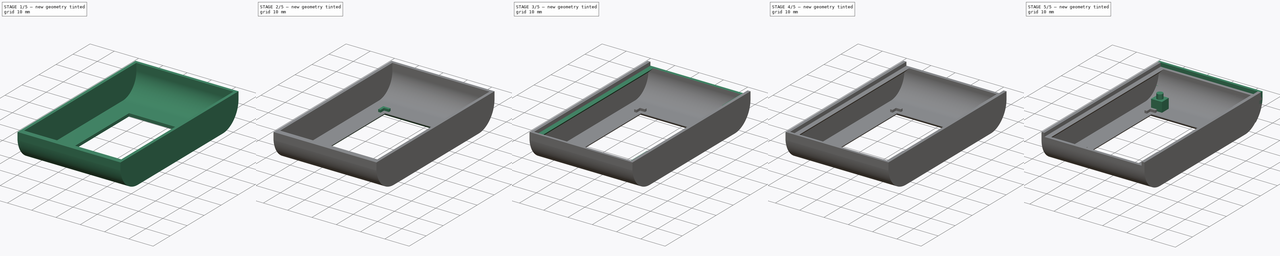
[diagram: build sequence overview — one tinted view per stage of 5, left to right]
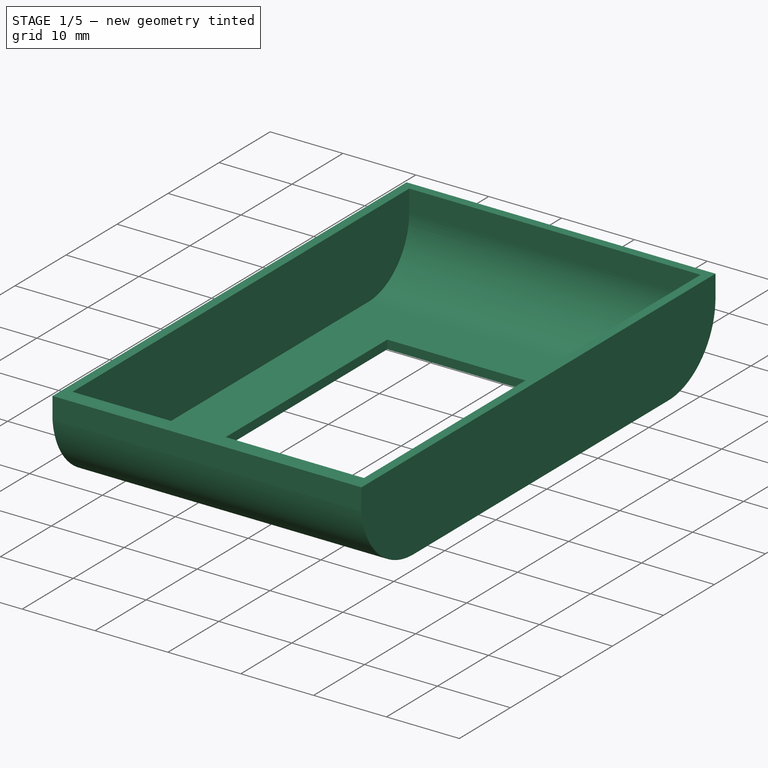
[diagram: stage 1 of 5 — iso view after this stage's code; geometry added in this stage tinted green]
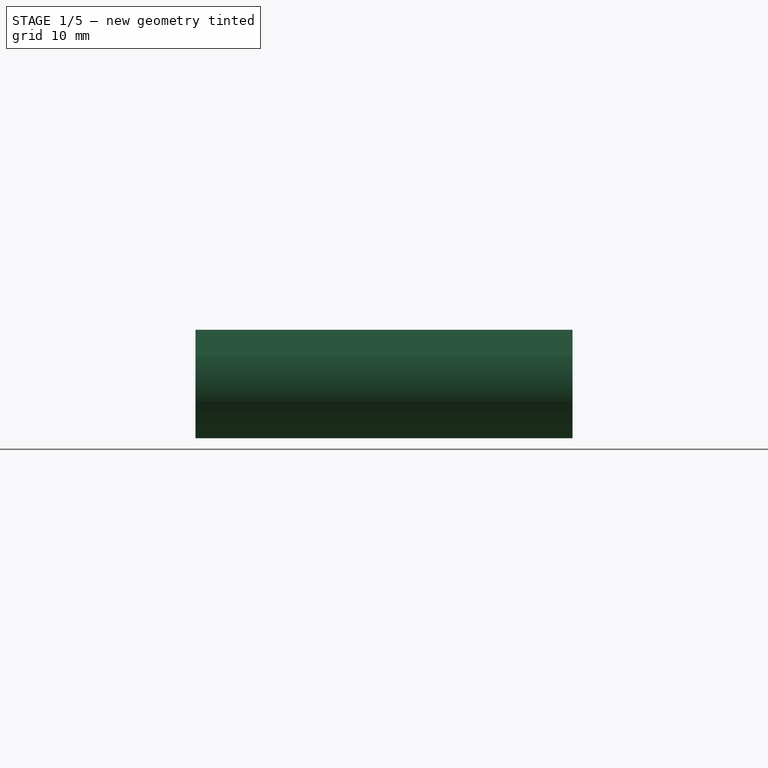
[diagram: stage 1 of 5 — front view after this stage's code; geometry added in this stage tinted green]
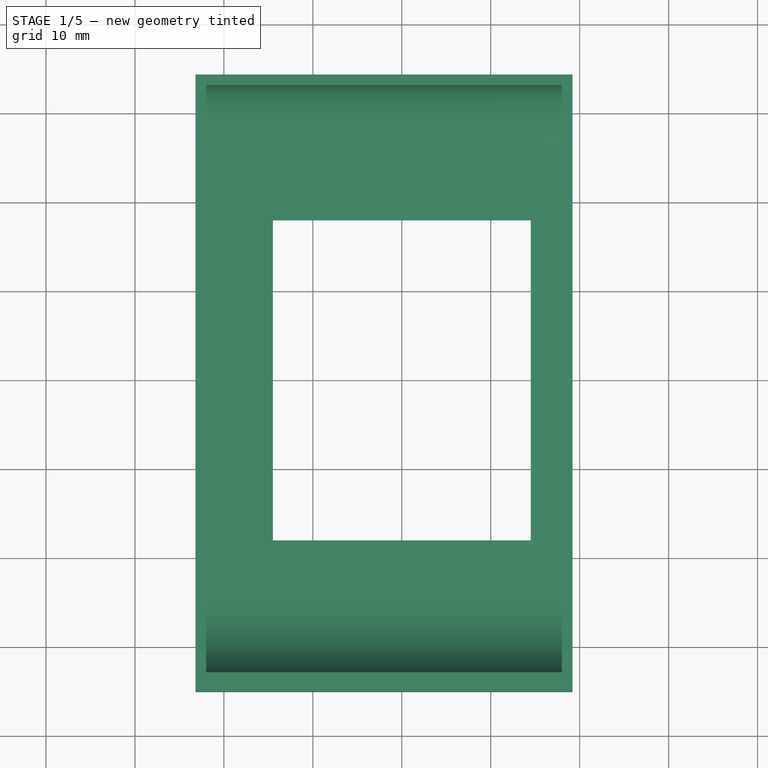
[diagram: stage 1 of 5 — top view after this stage's code; geometry added in this stage tinted green]
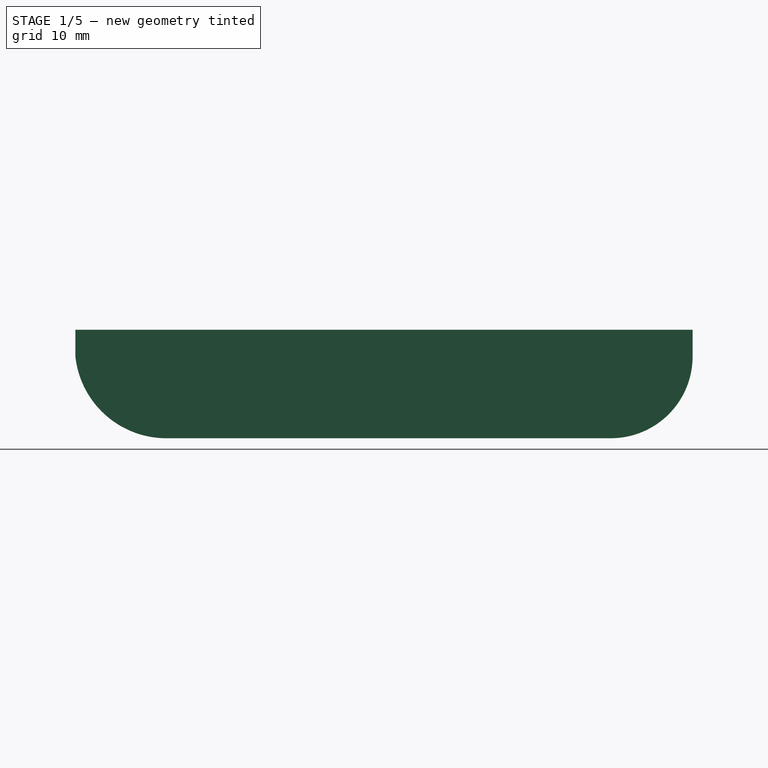
[diagram: stage 1 of 5 — right view after this stage's code; geometry added in this stage tinted green]
FCSTD DOCUMENT  (FreeCAD 0.18.3R)
Label: CajaSimple
License: All rights reserved
LicenseURL: http://en.wikipedia.org/wiki/All_rights_reserved
objects: Sketcher::SketchObject×13, PartDesign::Pad×9, PartDesign::Pocket×4, PartDesign::Body×4, App::MeasureDistance×4, Part::Mirroring×3, PartDesign::Mirrored×2, PartDesign::Thickness×1, PartDesign::Chamfer×1, PartDesign::PolarPattern×1, Part::Sphere×1, Part::Cut×1, App::Part×1
note: 53 computed .brp shape members not serialized (recipe doc carries the construction recipe); baked Part::Feature solids carry a one-line shape summary decoded from their .brp

FEATURE [Sketcher::SketchObject] Sketch
  MapMode = 5
  Placement = pos=(0,0,0) rot=(0.57735,0.57735,0.57735;2.0944rad)
  Support = -> [YZ_Plane001]
  expr: Constraints[5] = Constraints.RadioMenor
  sketch-geometry (7):
    g0: LineSegment StartX=-25 StartY=0 StartZ=0 EndX=25 EndY=0 EndZ=0
    g1: LineSegment StartX=-33 StartY=11 StartZ=0 EndX=-33 EndY=8 EndZ=0
    g2: ArcOfCircle CenterX=-25 CenterY=8 CenterZ=0 NormalX=0 NormalY=0 NormalZ=1 AngleXU=0 Radius=8 StartAngle=3.14159 EndAngle=4.71239
    g3: LineSegment StartX=-33 StartY=11 StartZ=0 EndX=33 EndY=11 EndZ=0
    g4: LineSegment StartX=33 StartY=11 StartZ=0 EndX=33 EndY=8 EndZ=0
    g5: ArcOfCircle CenterX=25 CenterY=8 CenterZ=0 NormalX=0 NormalY=0 NormalZ=1 AngleXU=0 Radius=8 StartAngle=4.71239 EndAngle=6.28319
    g6: LineSegment [constr] StartX=-30 StartY=4 StartZ=0 EndX=30 EndY=4 EndZ=0
  constraints (18):
    c: PointOnObject(g0,g-1)
    c: Parallel(g1,g-2)
    c: Tangent(g2,g1) = -1.5708
    c: Tangent(g2,g0) = -1.5708
    c: DistanceX(g0,g0) = 50  'Ancho'
    c: Radius(g2) = 8
    c: Coincident(g3,g1)
    c: Perpendicular(g-2,g3)
    c: Tangent(g5,g4) = 1.5708
    c: Radius(g5) = 8  'RadioMenor'
    c: Coincident(g3,g4)
    c: Tangent(g5,g0) = -1.5708
    c: Parallel(g4,g-2)
    c: Symmetric(g0,g0,g-2)
    c: DistanceY(g0,g1) = 11  'Capacidad'
    c: Symmetric(g6,g6,g-2)
    c: DistanceX(g6,g6) = 60
    c: DistanceY(g0,g6) = 4
FEATURE [PartDesign::Pad] Pad
  Length = 18
  Length2 = 22
  Placement = pos=(0,0,0) rot=(0.57735,0.57735,0.57735;2.0944rad)
  Profile = -> Sketch
  Type = 4
FEATURE [PartDesign::Thickness] Thickness  label="Cascaron"
  Base = -> Pad [Face6]
  BaseFeature = -> Pad
  Join = 1
  Mode = 0
  Value = 1.2
FEATURE [Sketcher::SketchObject] Sketch001
  MapMode = 5
  Placement = pos=(0,0,0) rot=(0.57735,0.57735,0.57735;2.0944rad)
  Support = -> [YZ_Plane002]
  expr: Constraints[21] = Cascaron.Value
  expr: Constraints[8] = Sketch.Constraints.Capacidad
  expr: Constraints.Ancho = Sketch.Constraints[4]
  expr: Constraints[7] = Cascaron.Value + 1mm
  sketch-geometry (8):
    g0: LineSegment [constr] StartX=-25 StartY=0 StartZ=0 EndX=25 EndY=0 EndZ=0
    g1: LineSegment [constr] StartX=-33 StartY=11 StartZ=0 EndX=-33 EndY=8 EndZ=0
    g2: ArcOfCircle CenterX=-25 CenterY=8 CenterZ=0 NormalX=0 NormalY=0 NormalZ=1 AngleXU=0 Radius=8 StartAngle=3.14159 EndAngle=4.71239
    g3: LineSegment StartX=-33 StartY=11 StartZ=0 EndX=-33 EndY=8 EndZ=0
    g4: LineSegment StartX=-35.2 StartY=8 StartZ=0 EndX=-35.2 EndY=11 EndZ=0
    g5: LineSegment StartX=-35.2 StartY=11 StartZ=0 EndX=-33 EndY=11 EndZ=0
    g6: ArcOfCircle CenterX=-24.9679 CenterY=9.08995 CenterZ=0 NormalX=0 NormalY=0 NormalZ=1 AngleXU=0 Radius=10.29 StartAngle=3.24771 EndAngle=4.70927
    g7: LineSegment StartX=-25 StartY=0 StartZ=0 EndX=-25 EndY=-1.2 EndZ=0
  constraints (22):
    c: PointOnObject(g0,g-1)
    c: Parallel(g1,g-2)
    c: Tangent(g2,g1) = -1.5708
    c: DistanceX(g0,g0) = 50  'Ancho'
    c: Radius(g2) = 8  'RadioMenor'
    c: Symmetric(g0,g0,g-2)
    c: Coincident(g3,g1)
    c: DistanceX(g4,g3) = 2.2
    c: DistanceY(g2,g3) = 11
    c: Coincident(g3,g1)
    c: Coincident(g5,g4)
    c: Coincident(g5,g3)
    c: Perpendicular(g3,g5)
    c: Perpendicular(g5,g4)
    c: Radius(g6) = 10.29
    c: Equal(g4,g3)
    c: Tangent(g2,g0) = -1.5708
    c: Coincident(g6,g4)
    c: Coincident(g7,g6)
    c: Coincident(g7,g2)
    c: Perpendicular(g0,g7)
    c: DistanceY(g7,g7) = 1.2
FEATURE [Sketcher::SketchObject] Sketch002  label="AgujeroPantalla"
  MapMode = 5
  Placement = pos=(3e-16,-5e-16,-1.2) rot=(1,0,0;3.14159rad)
  Support = -> [Thickness]
  sketch-geometry (4):
    g0: LineSegment StartX=-14.5 StartY=18 StartZ=0 EndX=14.5 EndY=18 EndZ=0
    g1: LineSegment StartX=14.5 StartY=18 StartZ=0 EndX=14.5 EndY=-18 EndZ=0
    g2: LineSegment StartX=14.5 StartY=-18 StartZ=0 EndX=-14.5 EndY=-18 EndZ=0
    g3: LineSegment StartX=-14.5 StartY=-18 StartZ=0 EndX=-14.5 EndY=18 EndZ=0
  constraints (11):
    c: Coincident(g0,g1)
    c: Coincident(g1,g2)
    c: Coincident(g2,g3)
    c: Coincident(g3,g0)
    c: Horizontal(g0)
    c: Horizontal(g2)
    c: Vertical(g1)
    c: Vertical(g3)
    c: DistanceX(g0,g0) = 29  'AnchoPantalla'
    c: DistanceY(g1,g1) = 36  'LargoPantalla'
    c: Symmetric(g0,g1,g-1)
FEATURE [PartDesign::Pocket] Pocket
  BaseFeature = -> Thickness
  Length = 5
  Length2 = 100
  Profile = -> Sketch002
  Refine = true
  Type = 1
FEATURE [PartDesign::Pad] Pad001
  Length = 19.2
  Length2 = 23.2
  Placement = pos=(0,0,0) rot=(0.57735,0.57735,0.57735;2.0944rad)
  Profile = -> Sketch001
  Type = 4
  expr: Length2 = Pad.Length + Cascaron.Value + 4mm
  expr: Length = Pad.Length + Cascaron.Value
FEATURE [PartDesign::Body] Body  label="CuerpoPrincipal"
  Group = -> [Sketch,Pad,Thickness,Sketch002,Pocket,Chamfer,Sketch003,Pad002,PolarPattern,Mirrored,Mirrored001,Sketch008,Pad007,Sketch009,Pad008,Sketch010,Pocket001,Sketch011,Pocket002]
  Origin = -> Origin001
  Tip = -> Pocket002
FEATURE [Sketcher::SketchObject] Sketch012
  ExternalGeometry = -> [Pad001]
  MapMode = 5
  Placement = pos=(-3.1e-15,4.8e-15,11) rot=(0,0,-1;1.5708rad)
  Support = -> [Pad001]
  expr: Constraints[7] = Cascaron.Value
  sketch-geometry (4):
    g0: LineSegment StartX=33 StartY=19.2 StartZ=0 EndX=34.2 EndY=19.2 EndZ=0
    g1: LineSegment StartX=34.2 StartY=19.2 StartZ=0 EndX=34.2 EndY=-23.2 EndZ=0
    g2: LineSegment StartX=34.2 StartY=-23.2 StartZ=0 EndX=33 EndY=-23.2 EndZ=0
    g3: LineSegment StartX=33 StartY=-23.2 StartZ=0 EndX=33 EndY=19.2 EndZ=0
  constraints (10):
    c: Coincident(g0,g1)
    c: Coincident(g1,g2)
    c: Coincident(g2,g3)
    c: Coincident(g3,g0)
    c: Horizontal(g0)
    c: Horizontal(g2)
    c: Vertical(g1)
    c: DistanceX(g0,g0) = 1.2
    c: Coincident(g0,g-4)
    c: Coincident(g2,g-4)
FEATURE [PartDesign::Pocket] Pocket003
  BaseFeature = -> Pad001
  Length = 1.5
  Length2 = 100
  Placement = pos=(0,0,0) rot=(0.57735,0.57735,0.57735;2.0944rad)
  Profile = -> Sketch012
  Refine = true
  Type = 0
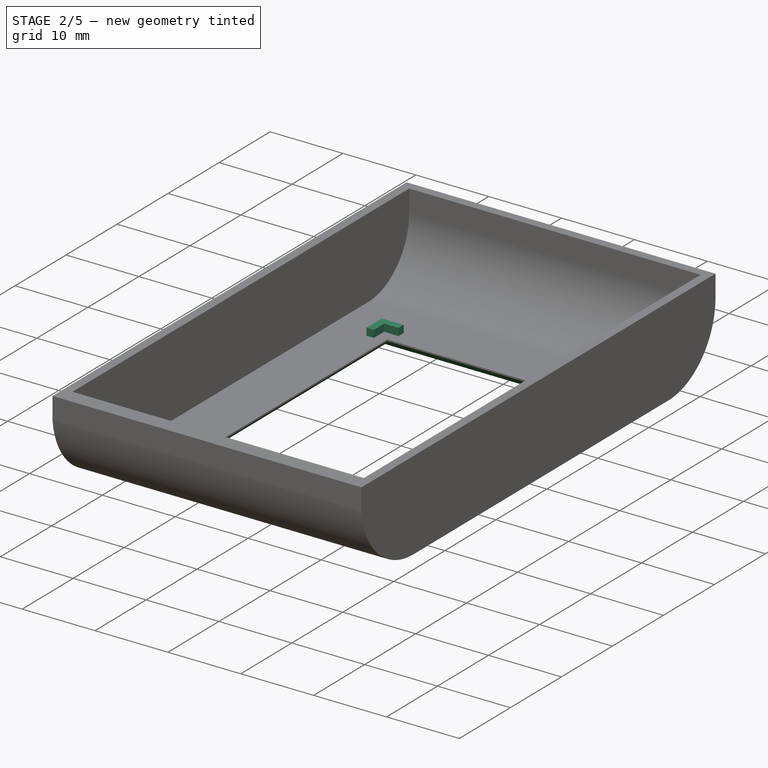
[diagram: stage 2 of 5 — iso view after this stage's code; geometry added in this stage tinted green]
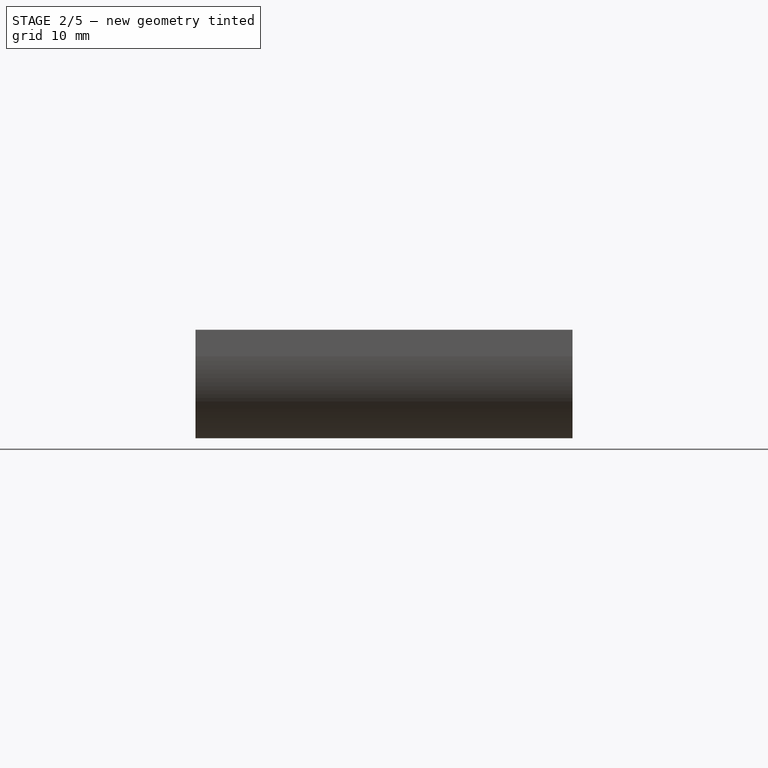
[diagram: stage 2 of 5 — front view after this stage's code; geometry added in this stage tinted green]
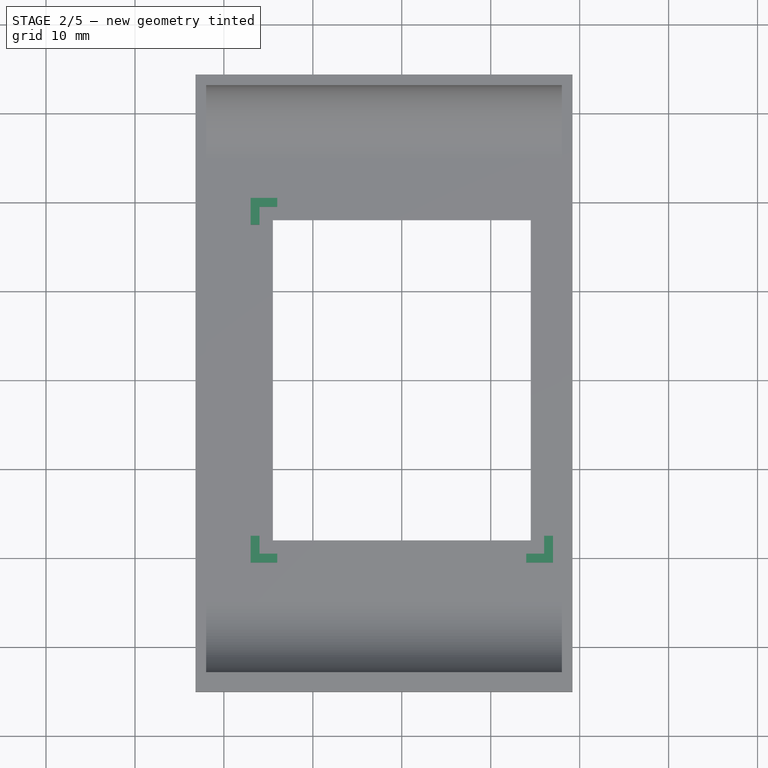
[diagram: stage 2 of 5 — top view after this stage's code; geometry added in this stage tinted green]
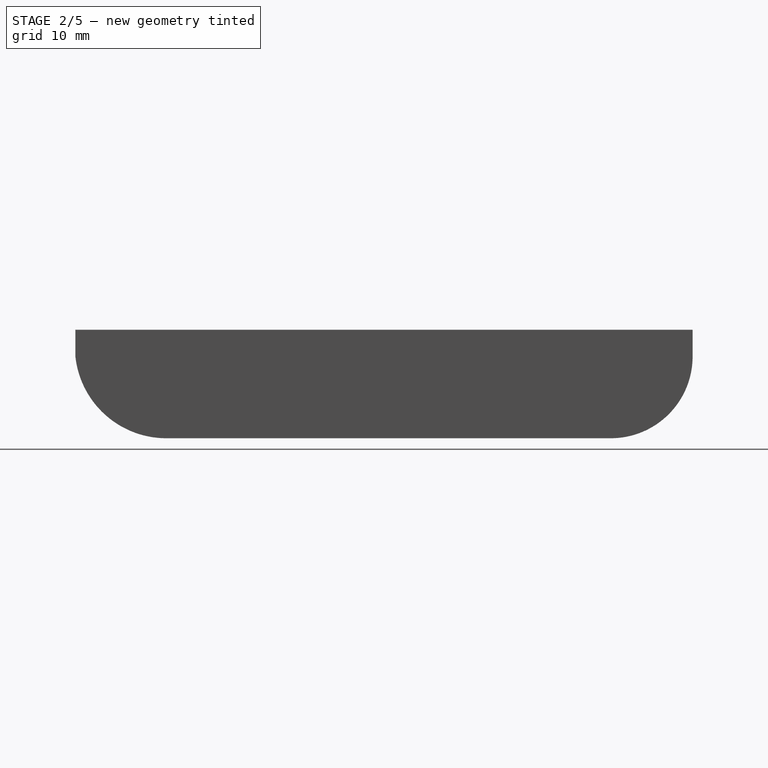
[diagram: stage 2 of 5 — right view after this stage's code; geometry added in this stage tinted green]
FEATURE [PartDesign::Chamfer] Chamfer
  Base = -> Pocket [Edge43,Edge42,Edge41,Edge44]
  BaseFeature = -> Pocket
  Size = 1
FEATURE [Sketcher::SketchObject] Sketch003  label="SoporteAcrilico"
  ExternalGeometry = -> [Chamfer]
  MapMode = 5
  Placement = pos=(0,0,2e-16) rot=(0,0,1;0rad)
  Support = -> [Chamfer]
  expr: Constraints[17] = Constraints.SobranteAcrilico
  sketch-geometry (6):
    g0: LineSegment StartX=-17 StartY=20.5 StartZ=0 EndX=-14 EndY=20.5 EndZ=0
    g1: LineSegment StartX=-14 StartY=20.5 StartZ=0 EndX=-14 EndY=19.5 EndZ=0
    g2: LineSegment StartX=-14 StartY=19.5 StartZ=0 EndX=-16 EndY=19.5 EndZ=0
    g3: LineSegment StartX=-16 StartY=19.5 StartZ=0 EndX=-16 EndY=17.5 EndZ=0
    g4: LineSegment StartX=-16 StartY=17.5 StartZ=0 EndX=-17 EndY=17.5 EndZ=0
    g5: LineSegment StartX=-17 StartY=17.5 StartZ=0 EndX=-17 EndY=20.5 EndZ=0
  constraints (18):
    c: Horizontal(g0)
    c: Coincident(g0,g1)
    c: Vertical(g1)
    c: Coincident(g1,g2)
    c: Coincident(g2,g3)
    c: Coincident(g3,g4)
    c: Coincident(g4,g5)
    c: Coincident(g5,g0)
    c: Perpendicular(g0,g5)
    c: Perpendicular(g2,g3)
    c: Parallel(g2,g0)
    c: DistanceX(g4,g4) = 1
    c: Parallel(g4,g0)
    c: DistanceY(g1,g1) = 1
    c: DistanceY(g5,g5) = 3
    c: Equal(g0,g5)
    c: DistanceY(g-3,g1) = 1.5  'SobranteAcrilico'
    c: DistanceX(g3,g-3) = 1.5
FEATURE [PartDesign::Pad] Pad002  label="SoporteAcrilico001"
  BaseFeature = -> Chamfer
  Length = 1
  Length2 = 100
  Profile = -> Sketch003
  Refine = true
  Type = 0
FEATURE [PartDesign::PolarPattern] PolarPattern
  Angle = 360
  Axis = -> Z_Axis001
  BaseFeature = -> Pad002
  Occurrences = 2
  Originals = -> [Pad002]
  Refine = true
FEATURE [PartDesign::Mirrored] Mirrored
  BaseFeature = -> PolarPattern
  MirrorPlane = -> XZ_Plane001
  Originals = -> [Pad002]
  Refine = true
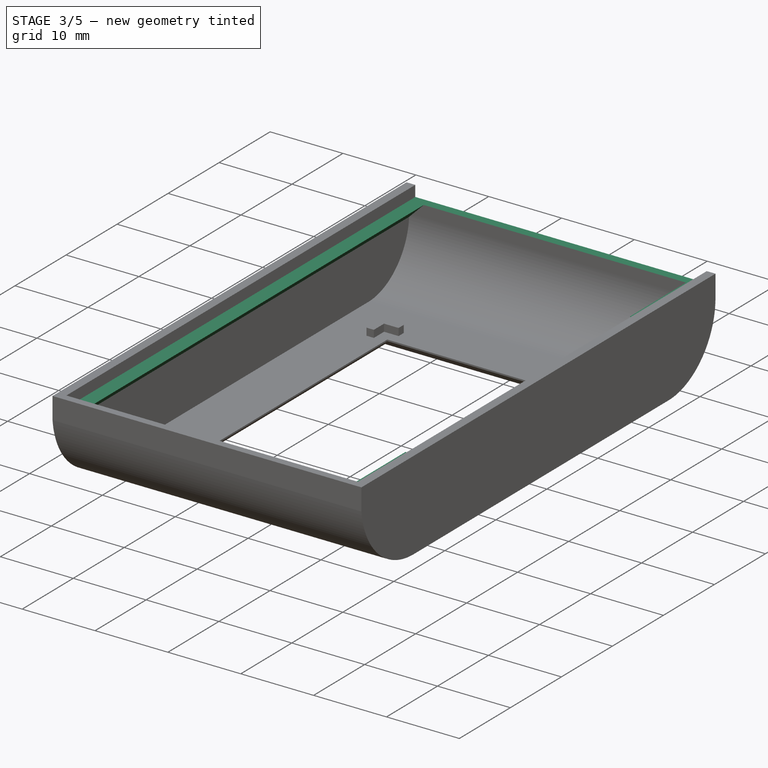
[diagram: stage 3 of 5 — iso view after this stage's code; geometry added in this stage tinted green]
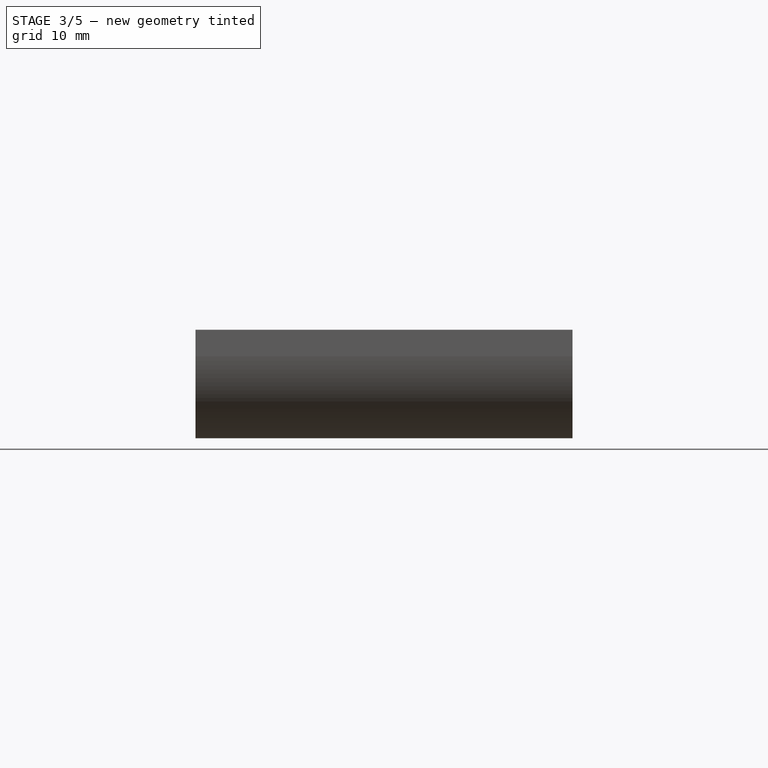
[diagram: stage 3 of 5 — front view after this stage's code; geometry added in this stage tinted green]
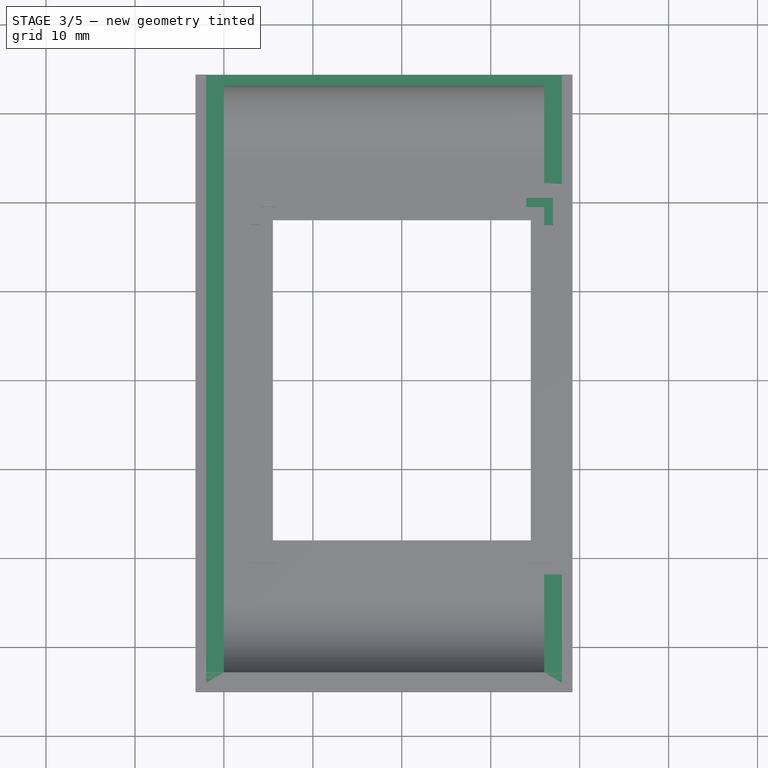
[diagram: stage 3 of 5 — top view after this stage's code; geometry added in this stage tinted green]
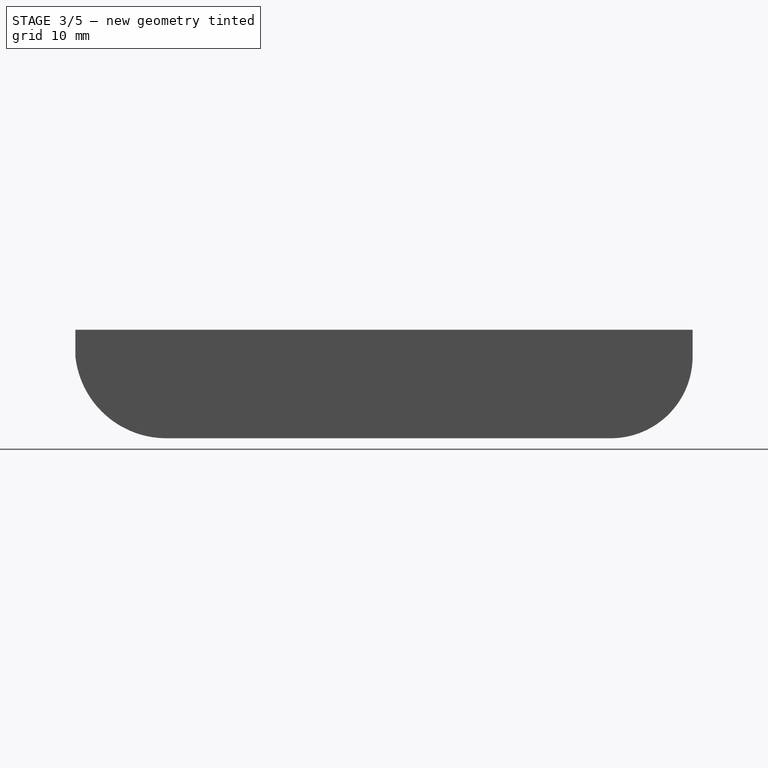
[diagram: stage 3 of 5 — right view after this stage's code; geometry added in this stage tinted green]
FEATURE [PartDesign::Mirrored] Mirrored001
  BaseFeature = -> Mirrored
  MirrorPlane = -> YZ_Plane001
  Originals = -> [Pad002]
  Refine = true
FEATURE [Sketcher::SketchObject] Sketch008
  ExternalGeometry = -> [Mirrored001]
  MapMode = 5
  Placement = pos=(1.45e-14,33,-7.3e-15) rot=(1,0,0;1.5708rad)
  Support = -> [Mirrored001]
  sketch-geometry (3):
    g0: LineSegment StartX=-22 StartY=7.5 StartZ=0 EndX=-20 EndY=9.5 EndZ=0
    g1: LineSegment StartX=-20 StartY=9.5 StartZ=0 EndX=-22 EndY=9.5 EndZ=0
    g2: LineSegment StartX=-22 StartY=9.5 StartZ=0 EndX=-22 EndY=7.5 EndZ=0
  constraints (9):
    c: Coincident(g0,g1)
    c: Coincident(g1,g2)
    c: Coincident(g2,g0)
    c: Equal(g2,g1)
    c: Perpendicular(g2,g1)
    c: Parallel(g1,g-3)
    c: PointOnObject(g1,g-4)
    c: DistanceY(g1,g-4) = 1.5  'EspesorTapa'
    c: DistanceX(g1,g1) = 2
FEATURE [PartDesign::Pad] Pad007
  BaseFeature = -> Mirrored001
  Length = 66
  Length2 = 100
  Profile = -> Sketch008
  Refine = true
  Type = 0
FEATURE [Sketcher::SketchObject] Sketch009
  ExternalGeometry = -> [Pad007]
  MapMode = 5
  Placement = pos=(1.45e-14,33,-7.3e-15) rot=(1,0,0;1.5708rad)
  Support = -> [Pad007]
  sketch-geometry (3):
    g0: LineSegment StartX=16 StartY=9.5 StartZ=0 EndX=18 EndY=9.5 EndZ=0
    g1: LineSegment StartX=18 StartY=9.5 StartZ=0 EndX=18 EndY=7.5 EndZ=0
    g2: LineSegment StartX=18 StartY=7.5 StartZ=0 EndX=16 EndY=9.5 EndZ=0
  constraints (9):
    c: Horizontal(g0)
    c: Coincident(g0,g1)
    c: Vertical(g1)
    c: Coincident(g1,g2)
    c: Coincident(g2,g0)
    c: Equal(g0,g1)
    c: DistanceX(g0,g0) = 2
    c: PointOnObject(g0,g-4)
    c: DistanceY(g0,g-4) = 1.5
FEATURE [PartDesign::Pad] Pad008
  BaseFeature = -> Pad007
  Length = 66
  Length2 = 100
  Profile = -> Sketch009
  Refine = true
  Type = 0
FEATURE [Sketcher::SketchObject] Sketch010
  ExternalGeometry = -> [Pad008]
  MapMode = 5
  Placement = pos=(0,2.1e-15,9.5) rot=(0,0,1;0rad)
  Support = -> [Pad008]
  sketch-geometry (4):
    g0: LineSegment StartX=16 StartY=22 StartZ=0 EndX=18 EndY=22 EndZ=0
    g1: LineSegment StartX=18 StartY=22 StartZ=0 EndX=18 EndY=-22 EndZ=0
    g2: LineSegment StartX=18 StartY=-22 StartZ=0 EndX=16 EndY=-22 EndZ=0
    g3: LineSegment StartX=16 StartY=-22 StartZ=0 EndX=16 EndY=22 EndZ=0
  constraints (12):
    c: Coincident(g0,g1)
    c: Coincident(g1,g2)
    c: Coincident(g2,g3)
    c: Coincident(g3,g0)
    c: Horizontal(g0)
    c: Horizontal(g2)
    c: Vertical(g1)
    c: Vertical(g3)
    c: PointOnObject(g0,g-6)
    c: PointOnObject(g0,g-5)
    c: DistanceY(g0,g-5) = 11
    c: DistanceY(g-5,g2) = 11
FEATURE [PartDesign::Pocket] Pocket001
  BaseFeature = -> Pad008
  Length = 2
  Length2 = 100
  Profile = -> Sketch010
  Refine = true
  Type = 0
FEATURE [Sketcher::SketchObject] Sketch011
  ExternalGeometry = -> [Pocket001]
  MapMode = 5
  Placement = pos=(-3.1e-15,4.8e-15,11) rot=(0,0,1;0rad)
  Support = -> [Pocket001]
  sketch-geometry (4):
    g0: LineSegment StartX=-22 StartY=34.2 StartZ=0 EndX=18 EndY=34.2 EndZ=0
    g1: LineSegment StartX=18 StartY=34.2 StartZ=0 EndX=18 EndY=-34.2 EndZ=0
    g2: LineSegment StartX=18 StartY=-34.2 StartZ=0 EndX=-22 EndY=-34.2 EndZ=0
    g3: LineSegment StartX=-22 StartY=-34.2 StartZ=0 EndX=-22 EndY=34.2 EndZ=0
  constraints (12):
    c: Coincident(g0,g1)
    c: Coincident(g1,g2)
    c: Coincident(g2,g3)
    c: Coincident(g3,g0)
    c: Horizontal(g0)
    c: Horizontal(g2)
    c: Vertical(g1)
    c: Vertical(g3)
    c: PointOnObject(g0,g-3)
    c: PointOnObject(g-5,g3)
    c: PointOnObject(g-6,g1)
    c: PointOnObject(g2,g-4)
FEATURE [PartDesign::Pocket] Pocket002
  BaseFeature = -> Pocket001
  Length = 1.5
  Length2 = 100
  Profile = -> Sketch011
  Refine = true
  Type = 0
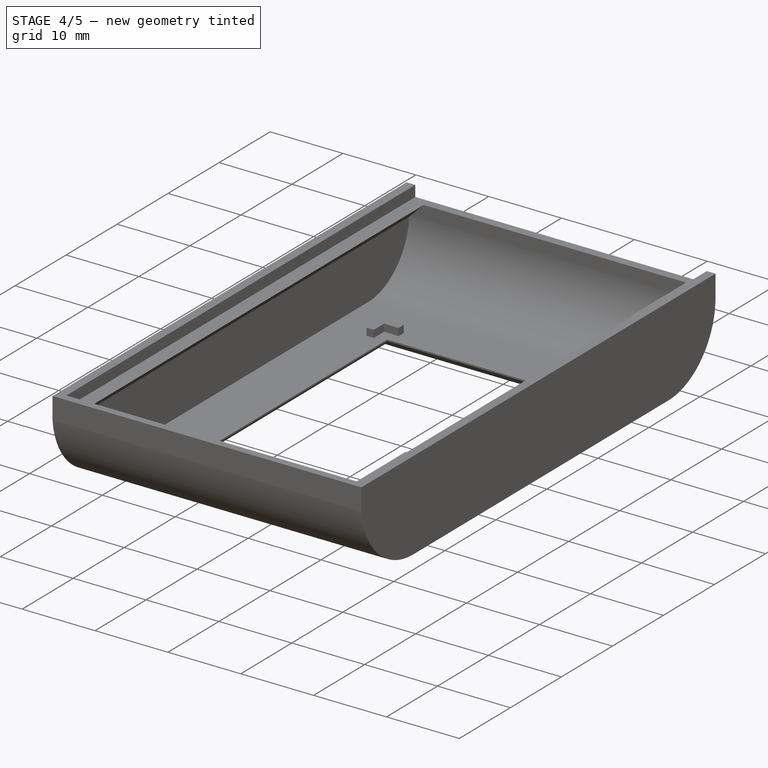
[diagram: stage 4 of 5 — iso view after this stage's code; geometry added in this stage tinted green]
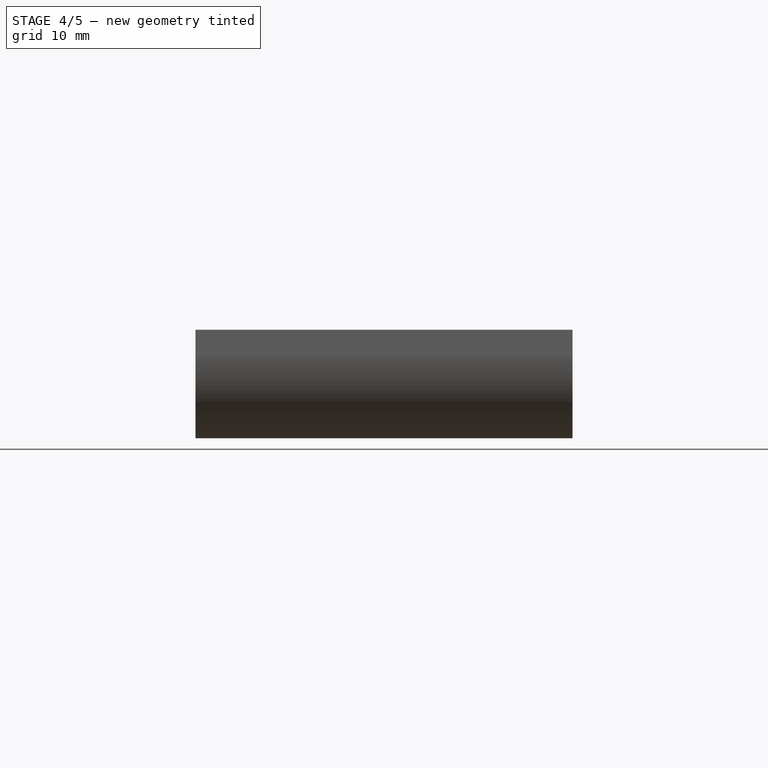
[diagram: stage 4 of 5 — front view after this stage's code; geometry added in this stage tinted green]
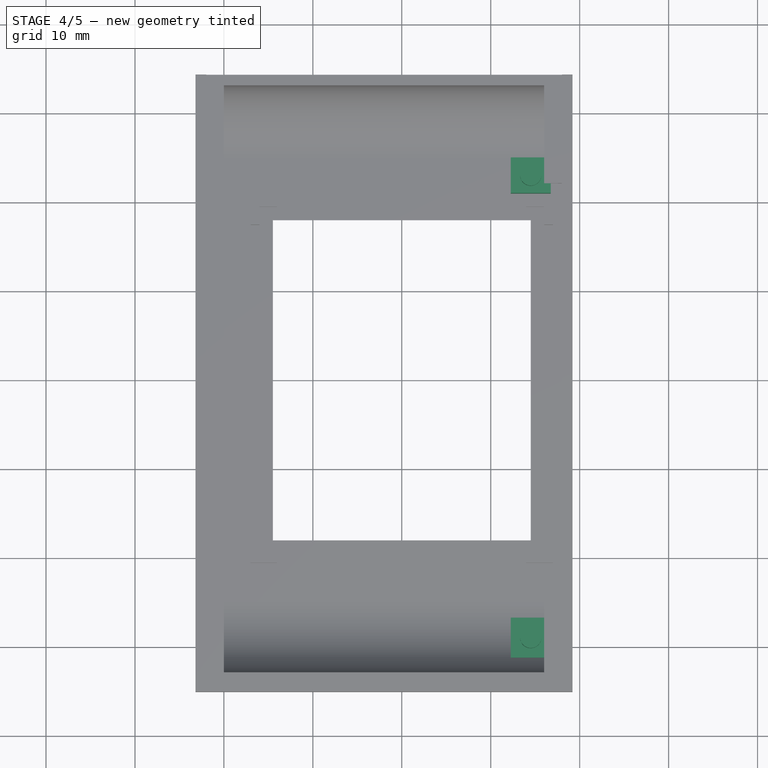
[diagram: stage 4 of 5 — top view after this stage's code; geometry added in this stage tinted green]
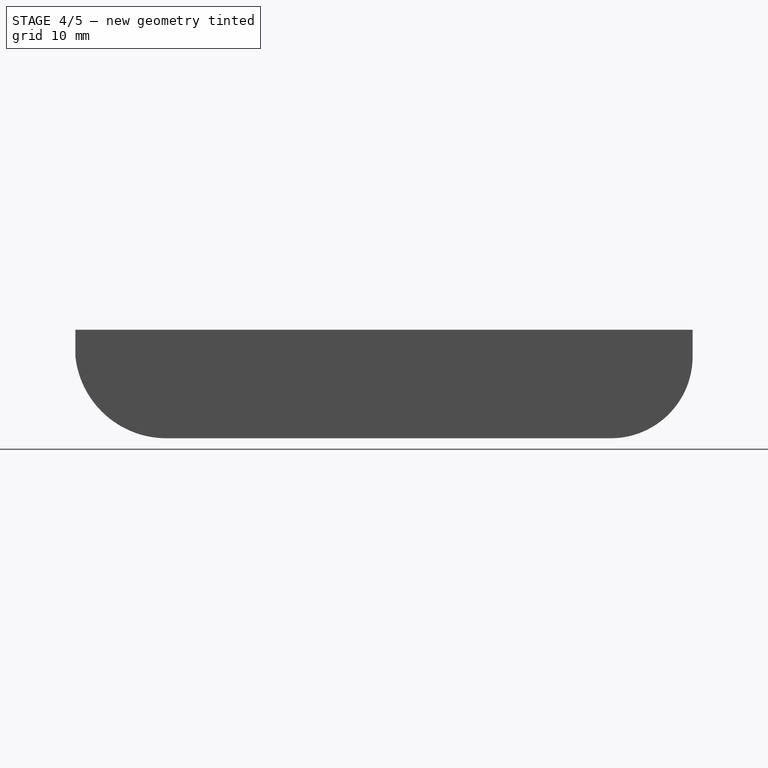
[diagram: stage 4 of 5 — right view after this stage's code; geometry added in this stage tinted green]
FEATURE [Sketcher::SketchObject] Sketch004  label="puntalesRectos"
  AttachmentOffset = pos=(0,0,14.5) rot=(0,0,1;0rad)
  MapMode = 5
  Placement = pos=(14.5,-3.2e-15,3.2e-15) rot=(0.57735,0.57735,0.57735;2.0944rad)
  Support = -> [YZ_Plane004]
  expr: Constraints[40] = Sketch.Constraints.RadioMenor
  expr: Constraints[17] = Sketch.Constraints[17]
  expr: Constraints[16] = Sketch.Constraints[16]
  expr: Constraints.Capacidad = Sketch.Constraints[14]
  expr: Constraints.RadioMenor = Sketch.Constraints[9]
  expr: Constraints[5] = Sketch.Constraints[5]
  expr: Constraints.Ancho = Sketch.Constraints[4]
  sketch-geometry (17):
    g0: LineSegment [constr] StartX=-25 StartY=0 StartZ=0 EndX=25 EndY=0 EndZ=0
    g1: LineSegment [constr] StartX=-33 StartY=11 StartZ=0 EndX=-33 EndY=8 EndZ=0
    g2: ArcOfCircle [constr] CenterX=-25 CenterY=8 CenterZ=0 NormalX=0 NormalY=0 NormalZ=1 AngleXU=0 Radius=8 StartAngle=3.14159 EndAngle=4.71239
    g3: LineSegment [constr] StartX=-33 StartY=11 StartZ=0 EndX=33 EndY=11 EndZ=0
    g4: LineSegment [constr] StartX=33 StartY=11 StartZ=0 EndX=33 EndY=8 EndZ=0
    g5: ArcOfCircle [constr] CenterX=25 CenterY=8 CenterZ=0 NormalX=0 NormalY=0 NormalZ=1 AngleXU=0 Radius=8 StartAngle=4.71239 EndAngle=6.28319
    g6: LineSegment [constr] StartX=-30 StartY=4 StartZ=0 EndX=30 EndY=4 EndZ=0
    g7: GeomPoint X=-29 Y=4 Z=0
    g8: LineSegment [constr] StartX=-31.25 StartY=4 StartZ=0 EndX=-26.75 EndY=4 EndZ=0
    g9: LineSegment [constr] StartX=-26.75 StartY=4 StartZ=0 EndX=-26.75 EndY=0.193753 EndZ=0
    g10: LineSegment [constr] StartX=-31.25 StartY=4 StartZ=0 EndX=-31.25 EndY=3.00625 EndZ=0
    g11: ArcOfCircle [constr] CenterX=-25 CenterY=8 CenterZ=0 NormalX=0 NormalY=0 NormalZ=1 AngleXU=0 Radius=8 StartAngle=3.81572 EndAngle=4.49186
    g12: LineSegment StartX=21 StartY=4 StartZ=0 EndX=25 EndY=4 EndZ=0
    g13: LineSegment StartX=25 StartY=4 StartZ=0 EndX=25 EndY=0 EndZ=0
    g14: LineSegment StartX=25 StartY=0 StartZ=0 EndX=21 EndY=0 EndZ=0
    g15: LineSegment StartX=21 StartY=0 StartZ=0 EndX=21 EndY=4 EndZ=0
    g16: GeomPoint X=23 Y=4 Z=0
  constraints (44):
    c: PointOnObject(g0,g-1)
    c: Parallel(g1,g-2)
    c: Tangent(g2,g1) = -1.5708
    c: Tangent(g2,g0) = -1.5708
    c: DistanceX(g0,g0) = 50  'Ancho'
    c: Radius(g2) = 8
    c: Coincident(g3,g1)
    c: Perpendicular(g-2,g3)
    c: Tangent(g5,g4) = 1.5708
    c: Radius(g5) = 8  'RadioMenor'
    c: Coincident(g3,g4)
    c: Tangent(g5,g0) = -1.5708
    c: Parallel(g4,g-2)
    c: Symmetric(g0,g0,g-2)
    c: DistanceY(g0,g1) = 11  'Capacidad'
    c: Symmetric(g6,g6,g-2)
    c: DistanceX(g6,g6) = 60
    c: DistanceY(g0,g6) = 4
    c: PointOnObject(g7,g6)
    c: DistanceX(g7,g-1) = 29
    c: Horizontal(g8)
    c: Coincident(g9,g8)
    c: PointOnObject(g9,g2)
    c: Vertical(g9)
    c: DistanceX(g8,g8) = 4.5
    c: Symmetric(g8,g8,g7)
    c: Coincident(g10,g8)
    c: PointOnObject(g10,g2)
    c: Parallel(g10,g9)
    c: Coincident(g11,g10)
    c: Coincident(g11,g9)
    c: Coincident(g12,g13)
    c: Coincident(g13,g14)
    c: Coincident(g15,g12)
    c: Horizontal(g12)
    c: Horizontal(g14)
    c: Vertical(g13)
    c: Vertical(g15)
    c: PointOnObject(g12,g6)
    c: Coincident(g15,g14)
    c: Radius(g11) = 8
    c: Coincident(g13,g0)
    c: DistanceX(g-1,g16) = 23
    c: Symmetric(g12,g12,g16)
FEATURE [Sketcher::SketchObject] Sketch005  label="puntalesCurvos"
  AttachmentOffset = pos=(0,0,14.5) rot=(0,0,1;0rad)
  MapMode = 5
  Placement = pos=(14.5,-3.2e-15,3.2e-15) rot=(0.57735,0.57735,0.57735;2.0944rad)
  Support = -> [YZ_Plane003]
  expr: Constraints[36] = Sketch004.Constraints[24]
  expr: Constraints[31] = Sketch004.Constraints[19]
  expr: Constraints[19] = Sketch004.Constraints[19]
  expr: Constraints[17] = Sketch004.Constraints[17]
  expr: Constraints[16] = Sketch004.Constraints[16]
  expr: Constraints.Capacidad = Sketch004.Constraints[14]
  expr: Constraints.RadioMenor = Sketch004.Constraints[9]
  expr: Constraints[5] = Sketch004.Constraints[5]
  expr: Constraints.Ancho = Sketch004.Constraints[4]
  sketch-geometry (17):
    g0: LineSegment [constr] StartX=-25 StartY=7.7325e-12 StartZ=0 EndX=25 EndY=3.384e-12 EndZ=0
    g1: LineSegment [constr] StartX=-33 StartY=11 StartZ=0 EndX=-33 EndY=8 EndZ=0
    g2: ArcOfCircle [constr] CenterX=-25 CenterY=8 CenterZ=0 NormalX=0 NormalY=0 NormalZ=1 AngleXU=0 Radius=8 StartAngle=3.14159 EndAngle=4.71239
    g3: LineSegment [constr] StartX=-33 StartY=11 StartZ=0 EndX=33 EndY=11 EndZ=0
    g4: LineSegment [constr] StartX=33 StartY=11 StartZ=0 EndX=33 EndY=8 EndZ=0
    g5: ArcOfCircle [constr] CenterX=25 CenterY=8 CenterZ=0 NormalX=0 NormalY=0 NormalZ=1 AngleXU=0 Radius=8 StartAngle=4.71239 EndAngle=6.28319
    g6: LineSegment [constr] StartX=-30 StartY=4 StartZ=0 EndX=30 EndY=4 EndZ=0
    g7: GeomPoint X=29 Y=4 Z=0
    g8: LineSegment [constr] StartX=33 StartY=4 StartZ=0 EndX=25 EndY=4 EndZ=0
    g9: LineSegment [constr] StartX=25 StartY=4 StartZ=0 EndX=25 EndY=3.384e-12 EndZ=0
    g10: LineSegment [constr] StartX=25 StartY=3.384e-12 StartZ=0 EndX=33 EndY=3.384e-12 EndZ=0
    g11: LineSegment [constr] StartX=33 StartY=3.384e-12 StartZ=0 EndX=33 EndY=4 EndZ=0
    g12: GeomPoint X=-29 Y=4 Z=0
    g13: LineSegment StartX=-31.25 StartY=4 StartZ=0 EndX=-26.75 EndY=4 EndZ=0
    g14: LineSegment StartX=-26.75 StartY=4 StartZ=0 EndX=-26.75 EndY=0.193753 EndZ=0
    g15: LineSegment StartX=-31.25 StartY=4 StartZ=0 EndX=-31.25 EndY=3.00625 EndZ=0
    g16: ArcOfCircle CenterX=-25 CenterY=8 CenterZ=0 NormalX=0 NormalY=0 NormalZ=1 AngleXU=0 Radius=8 StartAngle=3.81572 EndAngle=4.49186
  constraints (44):
    c: PointOnObject(g0,g-1)
    c: Parallel(g1,g-2)
    c: Tangent(g2,g1) = -1.5708
    c: Tangent(g2,g0) = -1.5708
    c: DistanceX(g0,g0) = 50  'Ancho'
    c: Radius(g2) = 8
    c: Coincident(g3,g1)
    c: Perpendicular(g-2,g3)
    c: Tangent(g5,g4) = 1.5708
    c: Radius(g5) = 8  'RadioMenor'
    c: Coincident(g3,g4)
    c: Tangent(g5,g0) = -1.5708
    c: Parallel(g4,g-2)
    c: Symmetric(g0,g0,g-2)
    c: DistanceY(g0,g1) = 11  'Capacidad'
    c: Symmetric(g6,g6,g-2)
    c: DistanceX(g6,g6) = 60
    c: DistanceY(g0,g6) = 4
    c: PointOnObject(g7,g6)
    c: DistanceX(g-1,g7) = 29
    c: Coincident(g8,g9)
    c: Coincident(g9,g10)
    c: Coincident(g10,g11)
    c: Coincident(g11,g8)
    c: Horizontal(g8)
    c: Horizontal(g10)
    c: Vertical(g9)
    c: Vertical(g11)
    c: Symmetric(g8,g8,g7)
    c: Coincident(g9,g0)
    c: PointOnObject(g12,g6)
    c: DistanceX(g12,g-1) = 29
    c: Horizontal(g13)
    c: Coincident(g14,g13)
    c: PointOnObject(g14,g2)
    c: Vertical(g14)
    c: DistanceX(g13,g13) = 4.5
    c: Symmetric(g13,g13,g12)
    c: Coincident(g15,g13)
    c: PointOnObject(g15,g2)
    c: Parallel(g15,g14)
    c: Coincident(g16,g15)
    c: Coincident(g16,g14)
    c: Tangent(g16,g2)
FEATURE [PartDesign::Pad] Pad003  label="puntalCurvo"
  Length = 2.25
  Length2 = 2.25
  Placement = pos=(0,0,0) rot=(0.57735,0.57735,0.57735;2.0944rad)
  Profile = -> Sketch005
  Refine = true
  Type = 4
FEATURE [PartDesign::Pad] Pad004
  Length = 4.5
  Length2 = 100
  Midplane = true
  Placement = pos=(0,0,0) rot=(0.57735,0.57735,0.57735;2.0944rad)
  Profile = -> Sketch004
  Refine = true
  Type = 0
FEATURE [Sketcher::SketchObject] Sketch006
  ExternalGeometry = -> [Pad004]
  MapMode = 5
  Placement = pos=(-1.6e-15,2.2e-15,4) rot=(0,0,-1;1.5708rad)
  Support = -> [Pad004]
  sketch-geometry (2):
    g0: GeomPoint X=-23 Y=14.5 Z=0
    g1: Circle CenterX=-23 CenterY=14.5 CenterZ=0 NormalX=0 NormalY=0 NormalZ=1 AngleXU=0 Radius=1.2
  constraints (3):
    c: Symmetric(g-4,g-3,g0)
    c: Coincident(g1,g0)
    c: Radius(g1) = 1.2  'RadioPuntal'
FEATURE [PartDesign::Pad] Pad005
  BaseFeature = -> Pad004
  Length = 2
  Length2 = 100
  Placement = pos=(0,0,0) rot=(0.57735,0.57735,0.57735;2.0944rad)
  Profile = -> Sketch006
  Refine = true
  Type = 0
FEATURE [Sketcher::SketchObject] Sketch007
  ExternalGeometry = -> [Pad003]
  MapMode = 5
  Placement = pos=(-1.6e-15,2.2e-15,4) rot=(0,0,-1;1.5708rad)
  Support = -> [Pad003]
  expr: Constraints[1] = Sketch006.Constraints.RadioPuntal
  sketch-geometry (2):
    g0: GeomPoint X=29 Y=14.5 Z=0
    g1: Circle CenterX=29 CenterY=14.5 CenterZ=0 NormalX=0 NormalY=0 NormalZ=1 AngleXU=0 Radius=1.2
  constraints (3):
    c: Symmetric(g-3,g-4,g0)
    c: Radius(g1) = 1.2
    c: Coincident(g1,g0)
FEATURE [PartDesign::Pad] Pad006
  BaseFeature = -> Pad003
  Length = 2
  Length2 = 100
  Placement = pos=(0,0,0) rot=(0.57735,0.57735,0.57735;2.0944rad)
  Profile = -> Sketch007
  Refine = true
  Type = 0
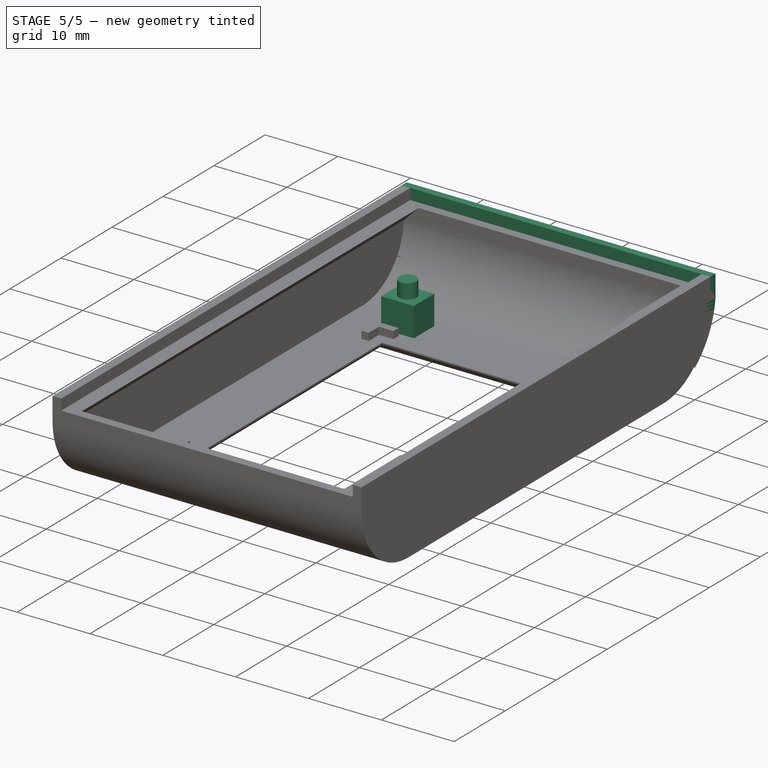
[diagram: stage 5 of 5 — iso view after this stage's code; geometry added in this stage tinted green]
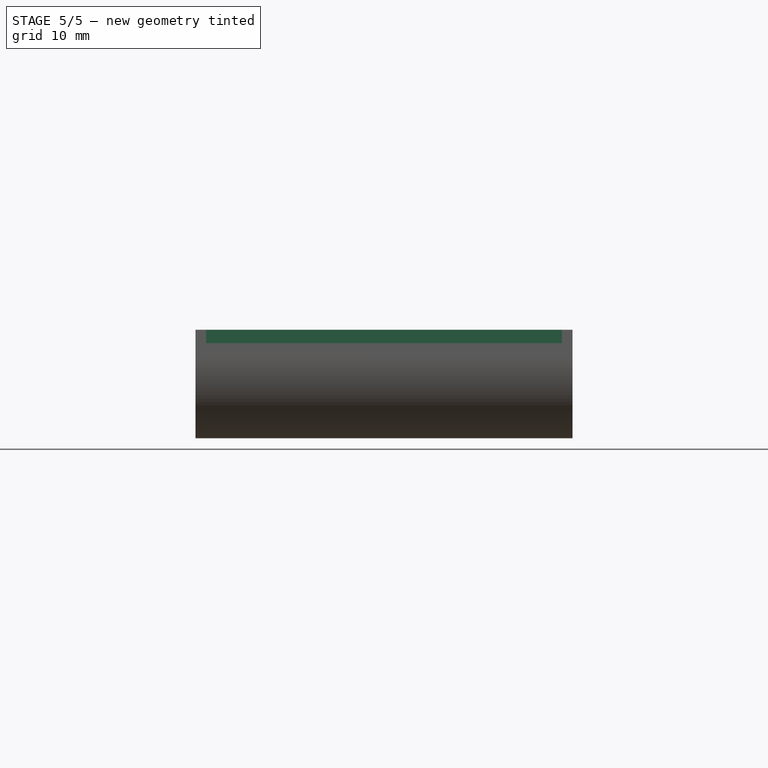
[diagram: stage 5 of 5 — front view after this stage's code; geometry added in this stage tinted green]
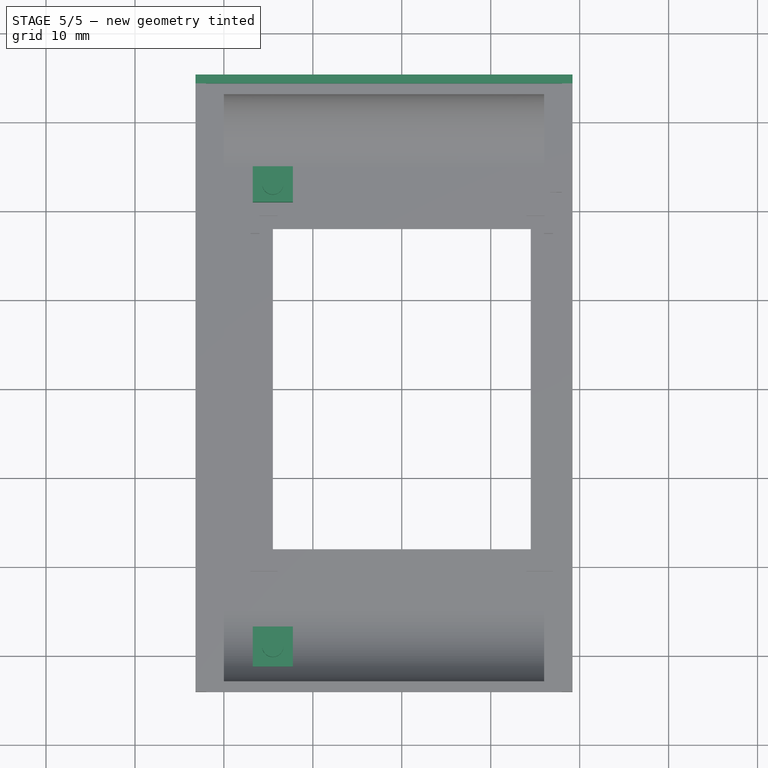
[diagram: stage 5 of 5 — top view after this stage's code; geometry added in this stage tinted green]
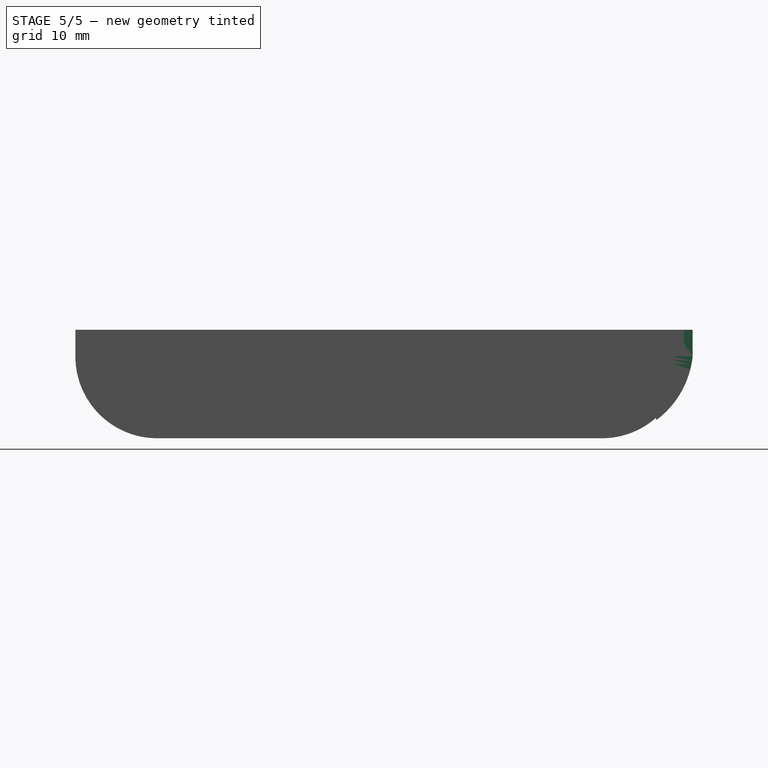
[diagram: stage 5 of 5 — right view after this stage's code; geometry added in this stage tinted green]
FEATURE [Part::Sphere] Sphere001  label="Esfera001"
  Angle1 = -90
  Angle2 = 90
  Angle3 = 360
  AttacherType = Attacher::AttachEngine3D
  Placement = pos=(-2,1,-10) rot=(0,0,1;0rad)
  Radius = 40
  expr: Radius = 40
FEATURE [PartDesign::Body] Body003  label="SoportesPantallaRecto"
  Group = -> [Sketch004,Pad004,Sketch006,Pad005]
  Origin = -> Origin004
  Tip = -> Pad005
FEATURE [Part::Mirroring] Part__Mirroring001  label="SoportesPantallaRecto (Mirror #2)"
  Base = (0,0,0)
  Normal = (1,0,0)
  Source = -> Body003
FEATURE [PartDesign::Body] Body002  label="SoportesPantallaCurvo"
  Group = -> [Sketch005,Pad003,Sketch007,Pad006]
  Origin = -> Origin003
  Tip = -> Pad006
FEATURE [Part::Mirroring] Part__Mirroring002  label="SoportesPantallaCurvo (Mirror #3)"
  Base = (0,0,0)
  Normal = (1,0,0)
  Source = -> Body002
FEATURE [PartDesign::Body] Body001  label="Alas"
  Group = -> [Sketch001,Pad001,Sketch012,Pocket003]
  Origin = -> Origin002
  Tip = -> Pocket003
FEATURE [Part::Cut] Cut  label="ala"
  Base = -> Body001
  Refine = true
  Tool = -> Sphere001
FEATURE [Part::Mirroring] Part__Mirroring  label="ala (Mirror #1)"
  Base = (0,0,0)
  Normal = (0,1,0)
  Source = -> Cut
FEATURE [App::Part] Part  label="Caja"
  Group = -> [Body,Body001,Cut,Sphere001,Part__Mirroring,Body002,Body003,Part__Mirroring001,Part__Mirroring002]
  Origin = -> Origin
FEATURE [App::MeasureDistance] Distance  label="Distance: 3.75 mm"
  Distance = 3.75476
  P1 = (18,22,7.5)
  P2 = (16.75,21.4655,4)
FEATURE [App::MeasureDistance] Distance001  label="Distance: 4.00 mm"
  Distance = 4.00004
  P1 = (16.7194,21,4)
  P2 = (16.7337,20.9909,-7.1e-15)
FEATURE [App::MeasureDistance] Distance002  label="Distance: 28.96 mm"
  Distance = 28.9641
  P1 = (14.6986,23.0024,6)
  P2 = (-14.2628,23.3995,6)
FEATURE [App::MeasureDistance] Distance003  label="Distance: 51.93 mm"
  Distance = 51.9291
  P1 = (-14.635,23.2438,6)
  P2 = (-14.4717,-28.685,6)
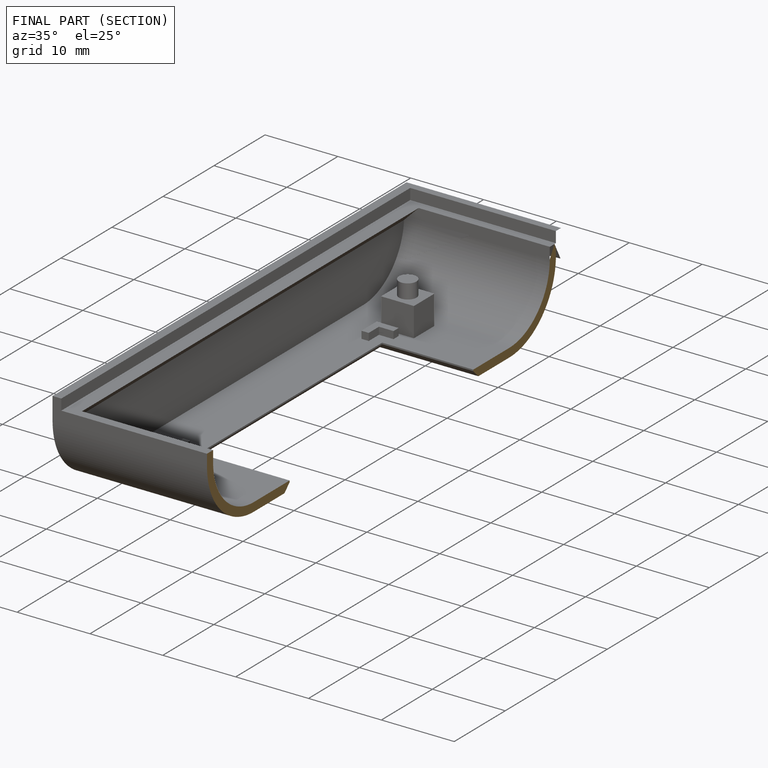
[diagram: finished part — half-section view (interior)]
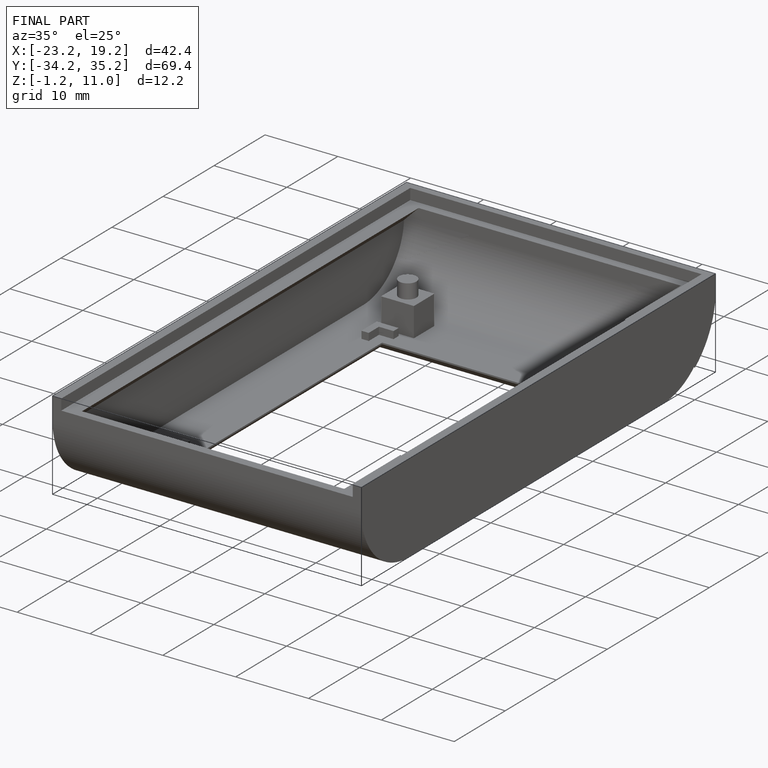
[diagram: finished part — iso view with bounding-box wireframe]
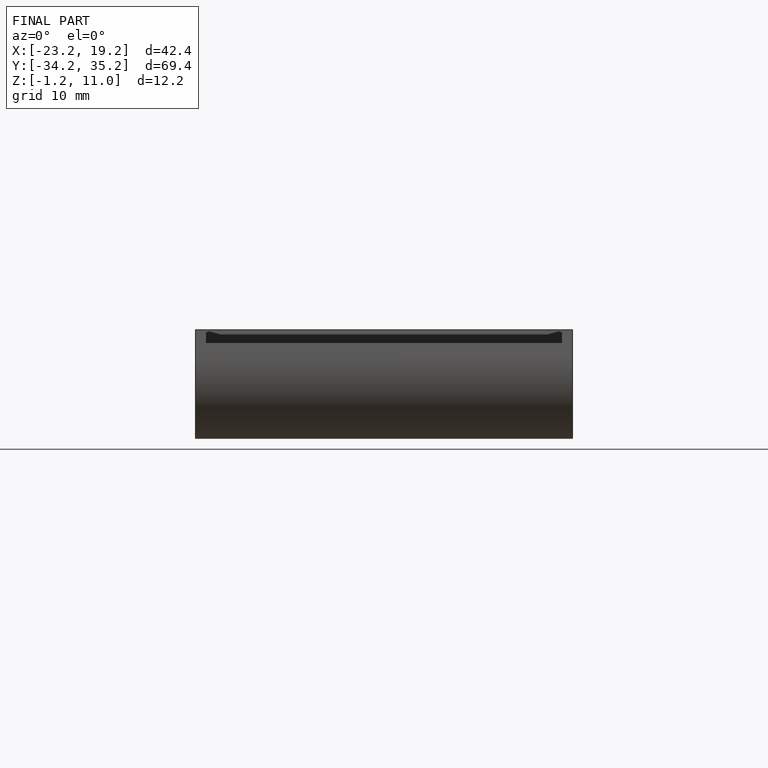
[diagram: finished part — front view with bounding-box wireframe]
